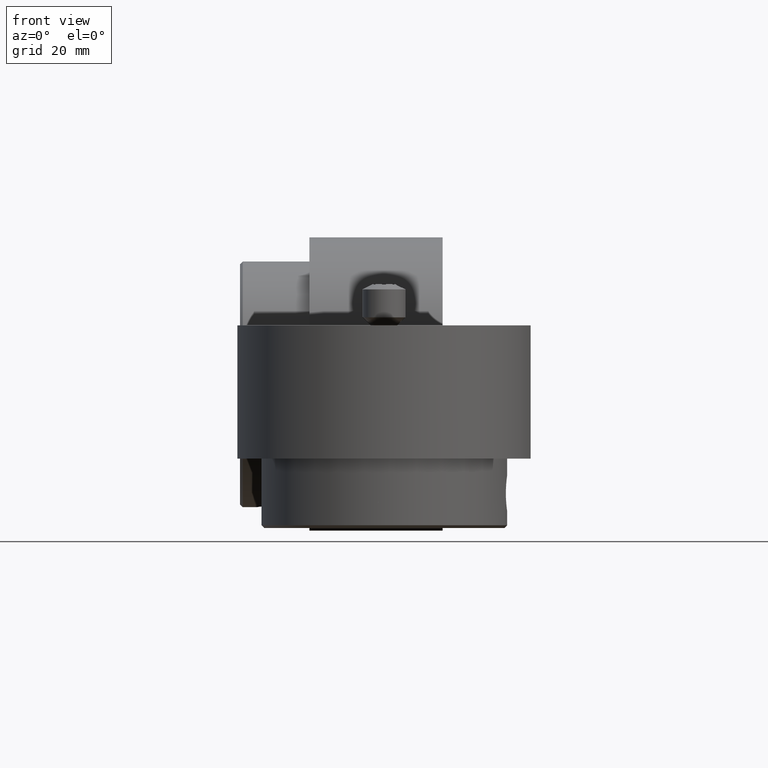
[diagram: clean part render]
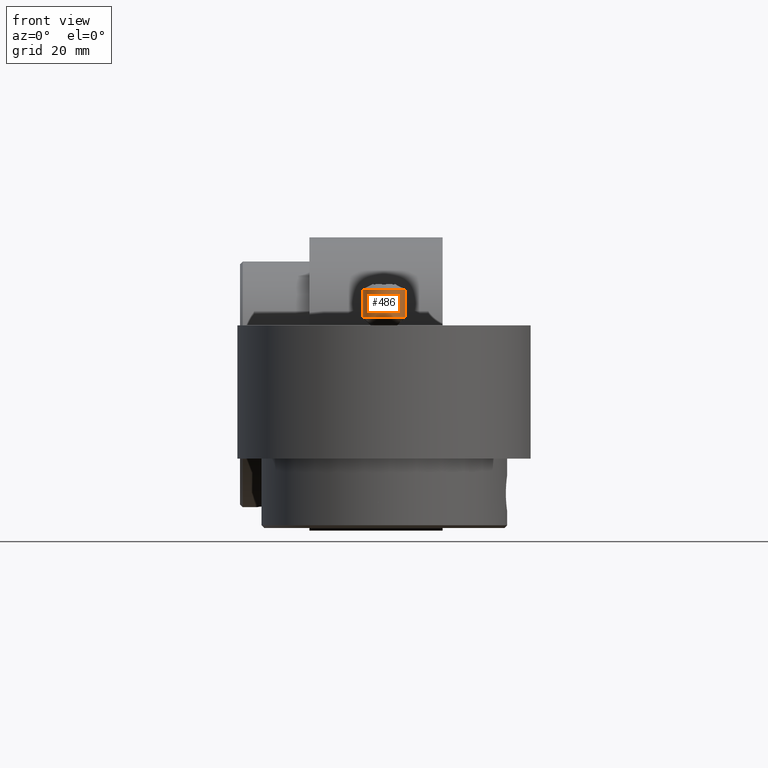
[diagram: same view with one face highlighted and labeled with its STEP entity id]
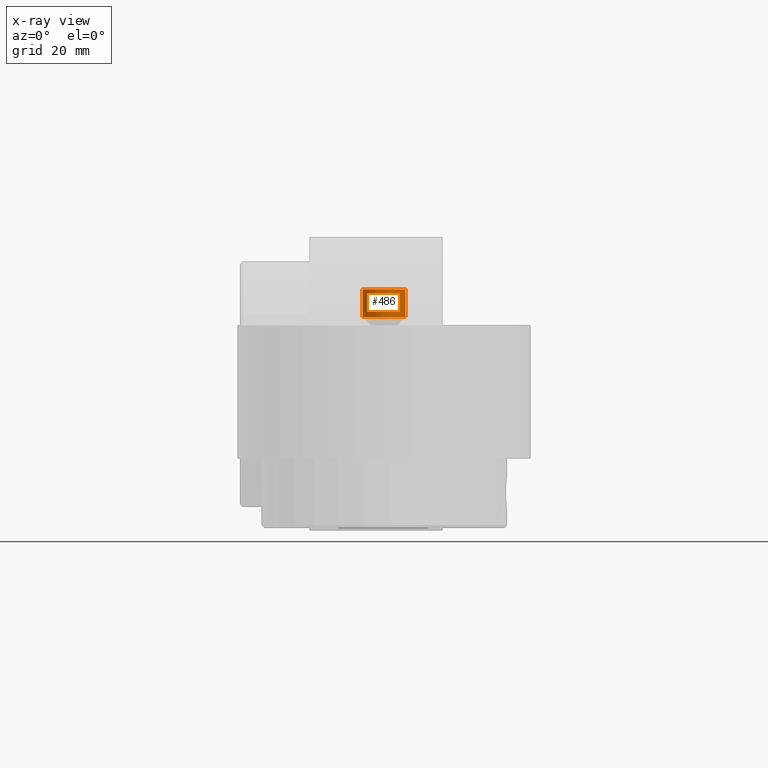
[diagram: x-ray of the same camera — body ghosted, the highlighted face saturated]
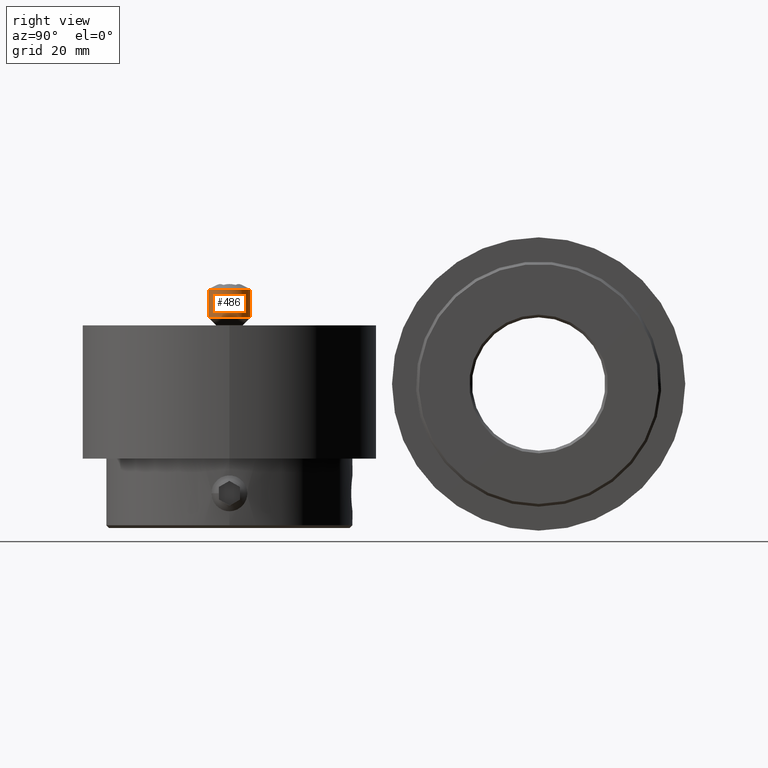
[diagram: same view with one face highlighted and labeled with its STEP entity id]
A machine part, front view. The second image highlights one B-rep face of the part: STEP entity #486.
The next image is the same camera in x-ray: the body ghosted, the highlighted face saturated — about 0% of this face is hidden behind the body in this view.
A second angle (right view) of the same face is appended — the face is thin or edge-on in the first view.
In plain terms, the highlighted cylindrical surface (bore or boss wall) has radius 4 mm, axis along (0, -0, 1).
Its self-contained STEP definition (entity closure, byte-faithful):
#486 = ADVANCED_FACE( '', ( #665, #666 ), #667, .T. );
#665 = FACE_OUTER_BOUND( '', #847, .T. );
#666 = FACE_OUTER_BOUND( '', #848, .T. );
#667 = CYLINDRICAL_SURFACE( '', #849, 4.00000000000000 );
#847 = EDGE_LOOP( '', ( #1239 ) );
#848 = EDGE_LOOP( '', ( #1240 ) );
#849 = AXIS2_PLACEMENT_3D( '', #1241, #1242, #1243 );
#1239 = ORIENTED_EDGE( '', *, *, #1329, .T. );
#1240 = ORIENTED_EDGE( '', *, *, #1350, .F. );
#1241 = CARTESIAN_POINT( '', ( 0.000000000000000, 0.000000000000000, 0.000000000000000 ) );
#1242 = DIRECTION( '', ( 0.000000000000000, -0.000000000000000, 1.00000000000000 ) );
#1243 = DIRECTION( '', ( -1.00000000000000, 0.000000000000000, 0.000000000000000 ) );
#1329 = EDGE_CURVE( '', #1495, #1495, #1496, .T. );
#1350 = EDGE_CURVE( '', #1529, #1529, #1530, .T. );
#1495 = VERTEX_POINT( '', #2295 );
#1496 = CIRCLE( '', #2296, 4.00000000000000 );
#1529 = VERTEX_POINT( '', #2383 );
#1530 = CIRCLE( '', #2384, 4.00000000000000 );
#2295 = CARTESIAN_POINT( '', ( -4.00000000000000, 0.000000000000000, 6.75000000000000 ) );
#2296 = AXIS2_PLACEMENT_3D( '', #2511, #2512, #2513 );
#2383 = CARTESIAN_POINT( '', ( -4.00000000000000, 0.000000000000000, 1.50000000000000 ) );
#2384 = AXIS2_PLACEMENT_3D( '', #2529, #2530, #2531 );
#2511 = CARTESIAN_POINT( '', ( 0.000000000000000, 0.000000000000000, 6.75000000000000 ) );
#2512 = DIRECTION( '', ( -0.000000000000000, 0.000000000000000, -1.00000000000000 ) );
#2513 = DIRECTION( '', ( -1.00000000000000, 0.000000000000000, 0.000000000000000 ) );
#2529 = CARTESIAN_POINT( '', ( 0.000000000000000, 0.000000000000000, 1.50000000000000 ) );
#2530 = DIRECTION( '', ( -0.000000000000000, 0.000000000000000, -1.00000000000000 ) );
#2531 = DIRECTION( '', ( -1.00000000000000, 0.000000000000000, 0.000000000000000 ) );